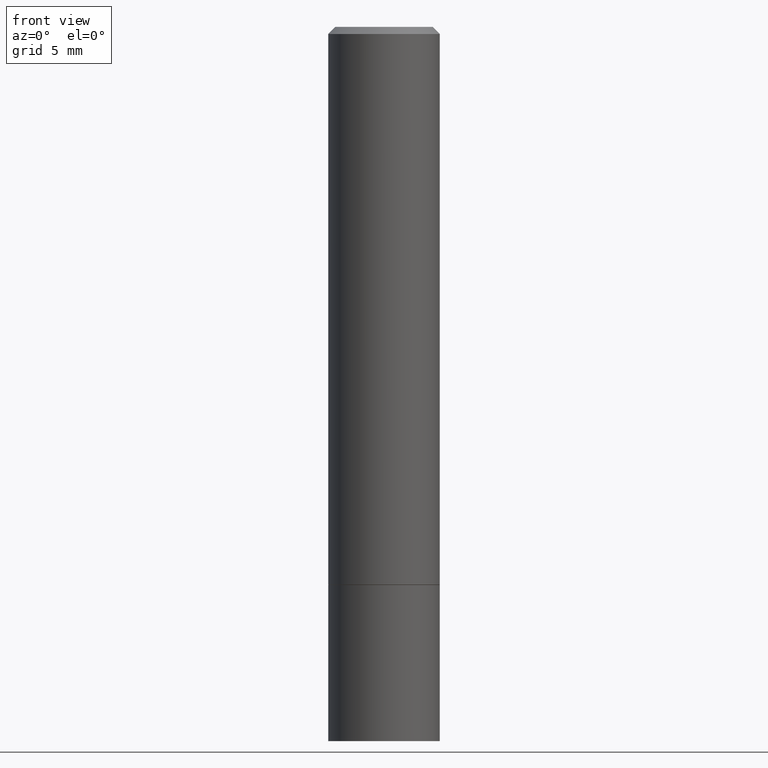
[diagram: clean part render]
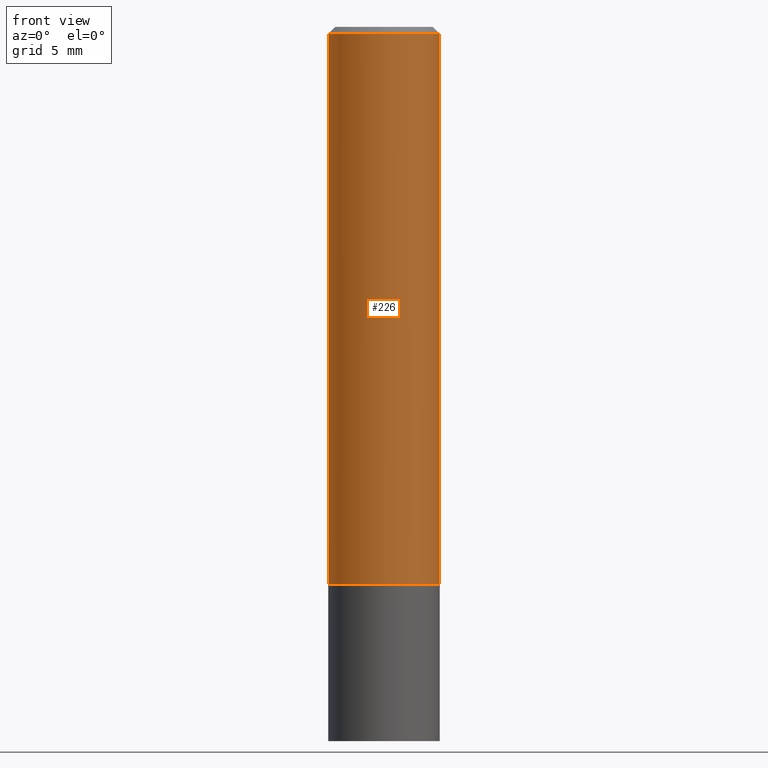
[diagram: same view with one face highlighted and labeled with its STEP entity id]
A machine part, front view. The second image highlights one B-rep face of the part: STEP entity #226.
In plain terms, the highlighted cylindrical surface (partial cylindrical patch) has radius 3.9687 mm, axis along (-0, 0, 1).
Its self-contained STEP definition (entity closure, byte-faithful):
#1 = CARTESIAN_POINT ( 'NONE',  ( 0.1562499999999999167, -1.091087918388478385E-15, 7.619026212181144772E-30 ) ) ;
#12 = ORIENTED_EDGE ( 'NONE', *, *, #314, .T. ) ;
#20 = AXIS2_PLACEMENT_3D ( 'NONE', #231, #181, #315 ) ;
#26 = LINE ( 'NONE', #1, #249 ) ;
#56 = EDGE_CURVE ( 'NONE', #61, #212, #200, .T. ) ;
#61 = VERTEX_POINT ( 'NONE', #195 ) ;
#63 = EDGE_CURVE ( 'NONE', #154, #240, #311, .T. ) ;
#68 = EDGE_LOOP ( 'NONE', ( #106, #243, #12, #326 ) ) ;
#79 = CARTESIAN_POINT ( 'NONE',  ( -0.1562499999999999167, 1.110223024625155949E-15, -7.685836078523285555E-30 ) ) ;
#94 = VECTOR ( 'NONE', #336, 39.37007874015748143 ) ;
#106 = ORIENTED_EDGE ( 'NONE', *, *, #164, .F. ) ;
#110 = DIRECTION ( 'NONE',  ( -2.445468806185136877E-29, 3.491481338843145188E-15, 1.000000000000000000 ) ) ;
#142 = DIRECTION ( 'NONE',  ( -2.445468806185136597E-29, 3.491481338843145583E-15, 1.000000000000000000 ) ) ;
#154 = VERTEX_POINT ( 'NONE', #290 ) ;
#164 = EDGE_CURVE ( 'NONE', #154, #61, #286, .T. ) ;
#181 = DIRECTION ( 'NONE',  ( -2.445468806185136597E-29, 3.491481338843145583E-15, 1.000000000000000000 ) ) ;
#195 = CARTESIAN_POINT ( 'NONE',  ( -0.1562499999999998057, 1.021258291611614495E-15, -0.02000000000000008021 ) ) ;
#200 = CIRCLE ( 'NONE', #214, 0.1562499999999998057 ) ;
#207 = CARTESIAN_POINT ( 'NONE',  ( 0.1562499999999998057, -1.141782438928663724E-15, -0.02000000000000008021 ) ) ;
#208 = CARTESIAN_POINT ( 'NONE',  ( 0.1562500000000000000, -6.543036028992050967E-15, -1.561499999999999888 ) ) ;
#212 = VERTEX_POINT ( 'NONE', #207 ) ;
#214 = AXIS2_PLACEMENT_3D ( 'NONE', #255, #228, #364 ) ;
#226 = ADVANCED_FACE ( 'NONE', ( #262 ), #236, .T. ) ;
#228 = DIRECTION ( 'NONE',  ( -2.445468806185136597E-29, 3.491481338843145583E-15, 1.000000000000000000 ) ) ;
#231 = CARTESIAN_POINT ( 'NONE',  ( 0.000000000000000000, 0.000000000000000000, 0.000000000000000000 ) ) ;
#236 = CYLINDRICAL_SURFACE ( 'NONE', #20, 0.1562499999999999167 ) ;
#240 = VERTEX_POINT ( 'NONE', #208 ) ;
#243 = ORIENTED_EDGE ( 'NONE', *, *, #63, .T. ) ;
#249 = VECTOR ( 'NONE', #110, 39.37007874015748143 ) ;
#255 = CARTESIAN_POINT ( 'NONE',  ( 4.890937612370293302E-31, -6.982962677686318726E-17, -0.02000000000000008021 ) ) ;
#262 = FACE_OUTER_BOUND ( 'NONE', #68, .T. ) ;
#286 = LINE ( 'NONE', #79, #94 ) ;
#290 = CARTESIAN_POINT ( 'NONE',  ( -0.1562500000000000000, -1.650665844065059428E-15, -1.561499999999999888 ) ) ;
#309 = DIRECTION ( 'NONE',  ( 1.000000000000000000, -6.982962677686269077E-15, 0.000000000000000000 ) ) ;
#311 = CIRCLE ( 'NONE', #321, 0.1562500000000000000 ) ;
#314 = EDGE_CURVE ( 'NONE', #240, #212, #26, .T. ) ;
#315 = DIRECTION ( 'NONE',  ( 1.000000000000000000, -6.982962677686265133E-15, 4.876176775795935232E-29 ) ) ;
#321 = AXIS2_PLACEMENT_3D ( 'NONE', #360, #142, #309 ) ;
#326 = ORIENTED_EDGE ( 'NONE', *, *, #56, .F. ) ;
#336 = DIRECTION ( 'NONE',  ( -2.445468806185136877E-29, 3.491481338843145188E-15, 1.000000000000000000 ) ) ;
#360 = CARTESIAN_POINT ( 'NONE',  ( 3.818599540858090890E-29, -5.451948110603571793E-15, -1.561499999999999888 ) ) ;
#364 = DIRECTION ( 'NONE',  ( 1.000000000000000000, -6.982962677686266711E-15, 0.000000000000000000 ) ) ;